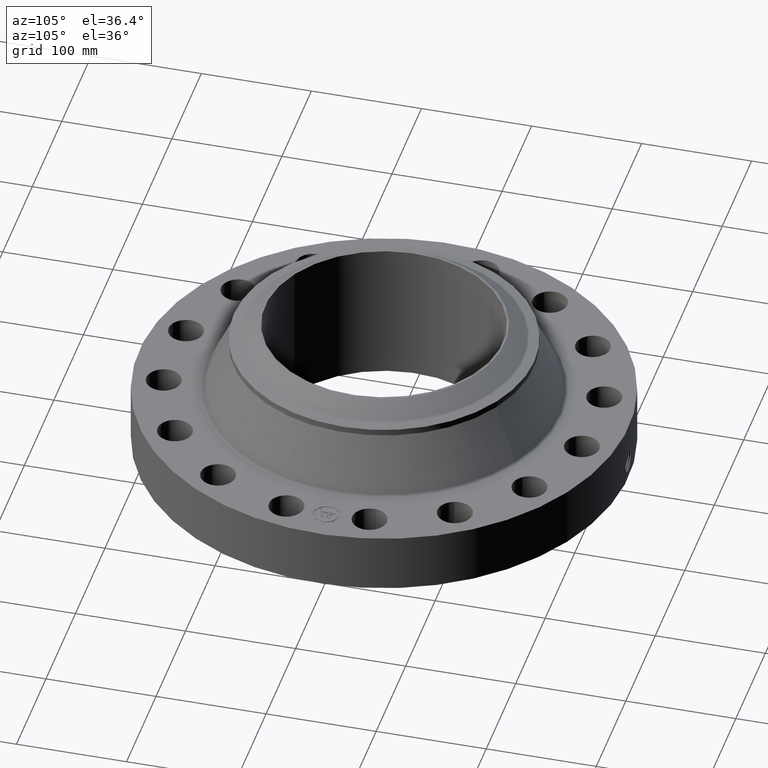
[diagram: clean part render]
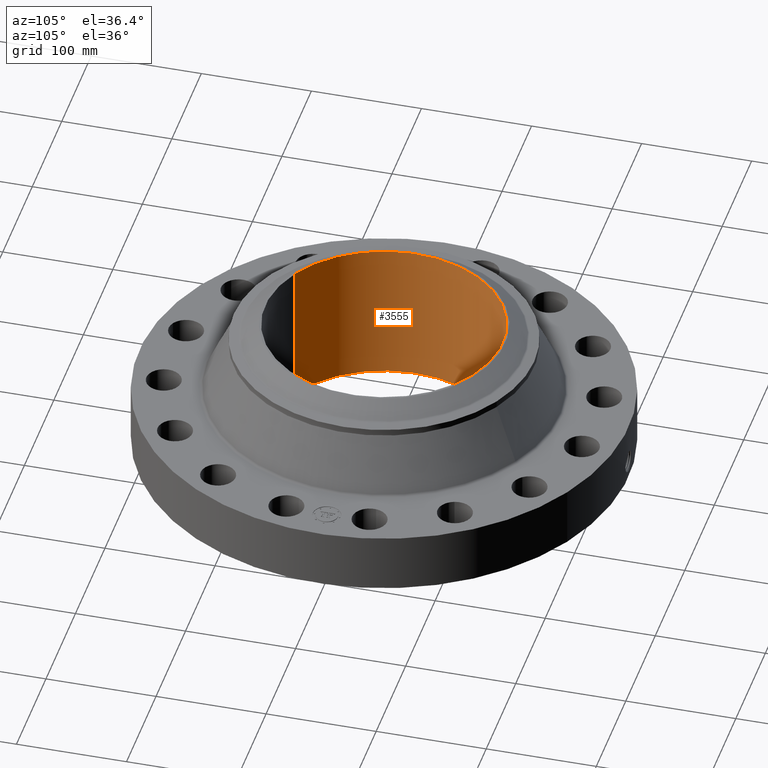
[diagram: same view with one face highlighted and labeled with its STEP entity id]
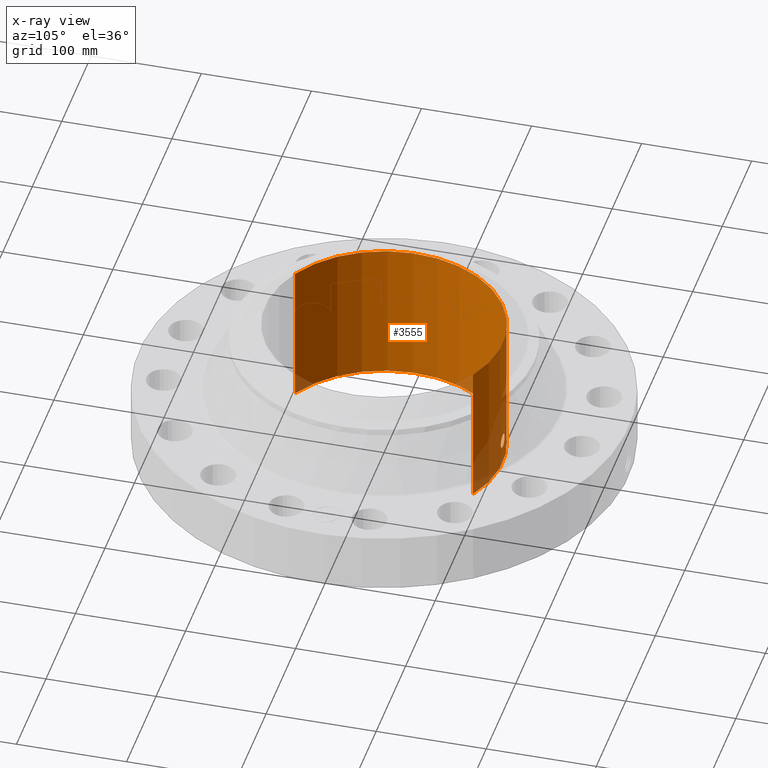
[diagram: x-ray of the same camera — body ghosted, the highlighted face saturated]
A machine part, auxiliary view. The second image highlights one B-rep face of the part: STEP entity #3555.
The next image is the same camera in x-ray: the body ghosted, the highlighted face saturated — about 7% of this face is hidden behind the body in this view.
In plain terms, the highlighted cylindrical surface (partial cylindrical patch) has radius 107.95 mm, axis along (0, 0, -1).
Its self-contained STEP definition (entity closure, byte-faithful):
#2723=AXIS2_PLACEMENT_3D('Circle Axis2P3D',#2721,#2722,$) ;
#3432=AXIS2_PLACEMENT_3D('Cylinder Axis2P3D',#3429,#3430,#3431) ;
#3504=AXIS2_PLACEMENT_3D('Circle Axis2P3D',#3502,#3503,$) ;
#2716=CARTESIAN_POINT('Vertex',(2.03755853908,3.72972588805,-1.67844740731E-014)) ;
#2718=CARTESIAN_POINT('Vertex',(-2.03755853908,-3.72972588805,-1.67844740731E-014)) ;
#2721=CARTESIAN_POINT('Axis2P3D Location',(0.,0.,0.)) ;
#3429=CARTESIAN_POINT('Axis2P3D Location',(0.,0.,2.56500000001)) ;
#3438=CARTESIAN_POINT('Vertex',(2.03755853908,3.72972588805,5.13000000002)) ;
#3440=CARTESIAN_POINT('Vertex',(-2.03755853908,-3.72972588805,5.13000000002)) ;
#3443=CARTESIAN_POINT('Line Origine',(2.03755853908,3.72972588805,2.56500000001)) ;
#3448=CARTESIAN_POINT('Line Origine',(-2.03755853908,-3.72972588805,2.56500000001)) ;
#3502=CARTESIAN_POINT('Axis2P3D Location',(0.,0.,5.13000000002)) ;
#3514=CARTESIAN_POINT('Control Point',(0.219395640473,4.24433334613,1.05985638466)) ;
#3515=CARTESIAN_POINT('Control Point',(0.206921850226,4.24497813413,1.08268950455)) ;
#3516=CARTESIAN_POINT('Control Point',(0.191478963095,4.24573045207,1.10389754138)) ;
#3517=CARTESIAN_POINT('Control Point',(0.17334703938,4.2465321409,1.12296819142)) ;
#3518=CARTESIAN_POINT('Control Point',(0.112149472947,4.24885047267,1.17244000847)) ;
#3519=CARTESIAN_POINT('Control Point',(0.0350042652032,4.25035667953,1.19596825407)) ;
#3520=CARTESIAN_POINT('Control Point',(-0.0195366265349,4.25046953931,1.19761227603)) ;
#3521=CARTESIAN_POINT('Control Point',(-0.124114958796,4.24881265556,1.17248211967)) ;
#3522=CARTESIAN_POINT('Control Point',(-0.203155646839,4.24538131819,1.09959823573)) ;
#3523=CARTESIAN_POINT('Control Point',(-0.23214004868,4.24369101348,1.05339901687)) ;
#3524=CARTESIAN_POINT('Control Point',(-0.255828648878,4.24229815736,0.975236726399)) ;
#3525=CARTESIAN_POINT('Control Point',(-0.24830376067,4.24274022708,0.895832970216)) ;
#3526=CARTESIAN_POINT('Control Point',(-0.242069484862,4.2431119127,0.869236850798)) ;
#3527=CARTESIAN_POINT('Control Point',(-0.232328370453,4.24366483488,0.843816818788)) ;
#3528=CARTESIAN_POINT('Control Point',(-0.219395640473,4.24433334613,0.820143615352)) ;
#3529=CARTESIAN_POINT('Vertex',(0.219395640473,4.24433334613,1.05985638466)) ;
#3531=CARTESIAN_POINT('Vertex',(-0.219395640473,4.24433334613,0.820143615352)) ;
#3535=CARTESIAN_POINT('Control Point',(-0.219395640473,4.24433334613,0.820143615352)) ;
#3536=CARTESIAN_POINT('Control Point',(-0.206921850214,4.24497813413,0.797310495439)) ;
#3537=CARTESIAN_POINT('Control Point',(-0.191478963067,4.24573045207,0.776102458589)) ;
#3538=CARTESIAN_POINT('Control Point',(-0.173347039419,4.2465321409,0.757031808617)) ;
#3539=CARTESIAN_POINT('Control Point',(-0.112149472972,4.24885047267,0.707559991549)) ;
#3540=CARTESIAN_POINT('Control Point',(-0.0350042652031,4.25035667953,0.684031745938)) ;
#3541=CARTESIAN_POINT('Control Point',(0.0195366265306,4.25046953931,0.682387723976)) ;
#3542=CARTESIAN_POINT('Control Point',(0.124114958811,4.24881265556,0.707517880337)) ;
#3543=CARTESIAN_POINT('Control Point',(0.203155646863,4.24538131819,0.780401764302)) ;
#3544=CARTESIAN_POINT('Control Point',(0.232140048669,4.24369101348,0.826600983101)) ;
#3545=CARTESIAN_POINT('Control Point',(0.255828648891,4.24229815736,0.904763273627)) ;
#3546=CARTESIAN_POINT('Control Point',(0.248303760663,4.24274022708,0.984167029863)) ;
#3547=CARTESIAN_POINT('Control Point',(0.242069484889,4.2431119127,1.01076314914)) ;
#3548=CARTESIAN_POINT('Control Point',(0.23232837047,4.24366483488,1.03618318119)) ;
#3549=CARTESIAN_POINT('Control Point',(0.219395640473,4.24433334613,1.05985638466)) ;
#2722=DIRECTION('Axis2P3D Direction',(0.,0.,-0.0393700787402)) ;
#3430=DIRECTION('Axis2P3D Direction',(0.,0.,-0.0393700787402)) ;
#3431=DIRECTION('Axis2P3D XDirection',(-0.0188750212049,-0.0345504945626,0.)) ;
#3444=DIRECTION('Vector Direction',(0.,0.,-0.0393700787402)) ;
#3449=DIRECTION('Vector Direction',(0.,0.,-0.0393700787402)) ;
#3503=DIRECTION('Axis2P3D Direction',(0.,0.,-0.0393700787402)) ;
#3445=VECTOR('Line Direction',#3444,0.0393700787402) ;
#3450=VECTOR('Line Direction',#3449,0.0393700787402) ;
#3508=ORIENTED_EDGE('',*,*,#3506,.F.) ;
#3509=ORIENTED_EDGE('',*,*,#3452,.T.) ;
#3510=ORIENTED_EDGE('',*,*,#2725,.T.) ;
#3511=ORIENTED_EDGE('',*,*,#3447,.F.) ;
#3552=ORIENTED_EDGE('',*,*,#3533,.F.) ;
#3553=ORIENTED_EDGE('',*,*,#3550,.F.) ;
#3554=FACE_BOUND('',#3551,.T.) ;
#3555=ADVANCED_FACE('PartBody',(#3512,#3554),#3433,.F.) ;
#3513=B_SPLINE_CURVE_WITH_KNOTS('',5,(#3514,#3515,#3516,#3517,#3518,#3519,#3520,#3521,#3522,#3523,#3524,#3525,#3526,#3527,#3528),.UNSPECIFIED.,.F.,.U.,(6,3,3,3,6),(0.,4.67443701625,14.0216593812,23.3716206852,28.2180411024),.UNSPECIFIED.) ;
#3534=B_SPLINE_CURVE_WITH_KNOTS('',5,(#3535,#3536,#3537,#3538,#3539,#3540,#3541,#3542,#3543,#3544,#3545,#3546,#3547,#3548,#3549),.UNSPECIFIED.,.F.,.U.,(6,3,3,3,6),(0.,4.67443702052,14.0216593857,23.3716206926,28.2180411164),.UNSPECIFIED.) ;
#2724=CIRCLE('generated circle',#2723,4.25000000002) ;
#3505=CIRCLE('generated circle',#3504,4.25000000002) ;
#3433=CYLINDRICAL_SURFACE('generated cylinder',#3432,4.25000000002) ;
#2725=EDGE_CURVE('',#2719,#2717,#2724,.T.) ;
#3447=EDGE_CURVE('',#3439,#2717,#3446,.T.) ;
#3452=EDGE_CURVE('',#3441,#2719,#3451,.T.) ;
#3506=EDGE_CURVE('',#3441,#3439,#3505,.T.) ;
#3533=EDGE_CURVE('',#3530,#3532,#3513,.T.) ;
#3550=EDGE_CURVE('',#3532,#3530,#3534,.T.) ;
#3507=EDGE_LOOP('',(#3508,#3509,#3510,#3511)) ;
#3551=EDGE_LOOP('',(#3552,#3553)) ;
#3512=FACE_OUTER_BOUND('',#3507,.T.) ;
#3446=LINE('Line',#3443,#3445) ;
#3451=LINE('Line',#3448,#3450) ;
#2717=VERTEX_POINT('',#2716) ;
#2719=VERTEX_POINT('',#2718) ;
#3439=VERTEX_POINT('',#3438) ;
#3441=VERTEX_POINT('',#3440) ;
#3530=VERTEX_POINT('',#3529) ;
#3532=VERTEX_POINT('',#3531) ;